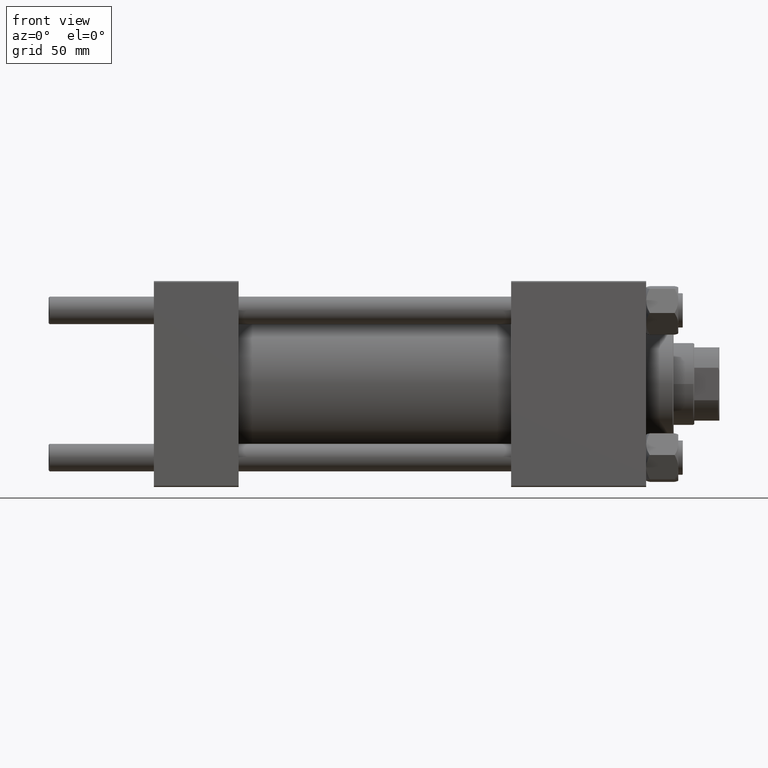
[diagram: clean part render]
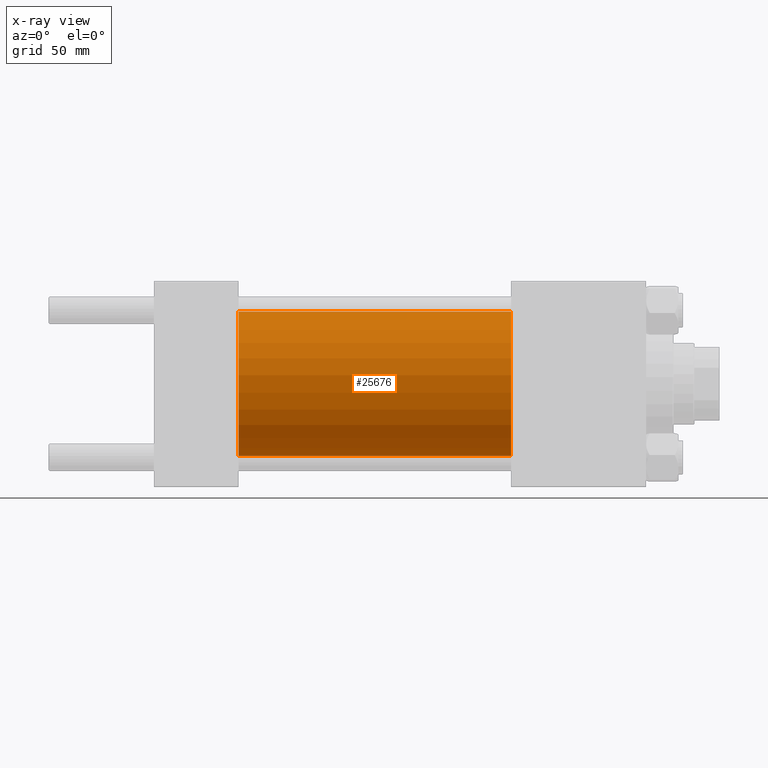
[diagram: x-ray — body ghosted, one internal face saturated and labeled with its STEP entity id]
A machine part, front view, then the same camera in x-ray: the body is ghosted and one INTERNAL B-rep face — a face not visible from any outside direction — is saturated and labeled: STEP entity #25676.
In plain terms, the highlighted cylindrical surface (partial cylindrical patch) has radius 31.5 mm, axis along (-1, -0, -0).
Its self-contained STEP definition (entity closure, byte-faithful):
#1200 = AXIS2_PLACEMENT_3D ( 'NONE', #28574, #44210, #20745 ) ;
#2621 = DIRECTION ( 'NONE',  ( -1.000000000000000000, -0.000000000000000000, -0.000000000000000000 ) ) ;
#8033 = CARTESIAN_POINT ( 'NONE',  ( 156.0000000000000000, 0.000000000000000000, 31.50000000000000000 ) ) ;
#8876 = ORIENTED_EDGE ( 'NONE', *, *, #26259, .T. ) ;
#10731 = FACE_OUTER_BOUND ( 'NONE', #33809, .T. ) ;
#12243 = CARTESIAN_POINT ( 'NONE',  ( 37.00000000000000000, 0.000000000000000000, 31.50000000000000000 ) ) ;
#14118 = CARTESIAN_POINT ( 'NONE',  ( 156.0000000000000000, 3.857637417314162689E-15, -31.50000000000000000 ) ) ;
#14277 = CARTESIAN_POINT ( 'NONE',  ( 156.0000000000000000, 3.857637417314162689E-15, -31.50000000000000000 ) ) ;
#18258 = CARTESIAN_POINT ( 'NONE',  ( 156.0000000000000000, 0.000000000000000000, 31.50000000000000000 ) ) ;
#18670 = CARTESIAN_POINT ( 'NONE',  ( 37.00000000000000000, 0.000000000000000000, 0.000000000000000000 ) ) ;
#19167 = DIRECTION ( 'NONE',  ( 1.000000000000000000, 0.000000000000000000, 0.000000000000000000 ) ) ;
#19677 = DIRECTION ( 'NONE',  ( 0.000000000000000000, 0.000000000000000000, -1.000000000000000000 ) ) ;
#20745 = DIRECTION ( 'NONE',  ( 0.000000000000000000, 0.000000000000000000, -1.000000000000000000 ) ) ;
#21884 = EDGE_CURVE ( 'NONE', #29522, #39090, #48581, .T. ) ;
#25009 = DIRECTION ( 'NONE',  ( -1.000000000000000000, -0.000000000000000000, -0.000000000000000000 ) ) ;
#25417 = DIRECTION ( 'NONE',  ( -1.000000000000000000, -0.000000000000000000, -0.000000000000000000 ) ) ;
#25676 = ADVANCED_FACE ( 'NONE', ( #10731 ), #48124, .F. ) ;
#26259 = EDGE_CURVE ( 'NONE', #33744, #38907, #28792, .T. ) ;
#27648 = VECTOR ( 'NONE', #25009, 1000.000000000000000 ) ;
#28574 = CARTESIAN_POINT ( 'NONE',  ( 156.0000000000000000, 0.000000000000000000, 0.000000000000000000 ) ) ;
#28792 = LINE ( 'NONE', #14118, #27648 ) ;
#29522 = VERTEX_POINT ( 'NONE', #8033 ) ;
#30078 = ORIENTED_EDGE ( 'NONE', *, *, #31643, .F. ) ;
#30189 = CIRCLE ( 'NONE', #38263, 31.50000000000000000 ) ;
#31643 = EDGE_CURVE ( 'NONE', #39090, #38907, #30189, .T. ) ;
#32307 = EDGE_CURVE ( 'NONE', #29522, #33744, #41503, .T. ) ;
#33744 = VERTEX_POINT ( 'NONE', #14277 ) ;
#33809 = EDGE_LOOP ( 'NONE', ( #46518, #8876, #30078, #40599 ) ) ;
#38263 = AXIS2_PLACEMENT_3D ( 'NONE', #18670, #19167, #19677 ) ;
#38907 = VERTEX_POINT ( 'NONE', #46628 ) ;
#39090 = VERTEX_POINT ( 'NONE', #12243 ) ;
#40313 = DIRECTION ( 'NONE',  ( 0.000000000000000000, 0.000000000000000000, 1.000000000000000000 ) ) ;
#40599 = ORIENTED_EDGE ( 'NONE', *, *, #21884, .F. ) ;
#40810 = CARTESIAN_POINT ( 'NONE',  ( 156.0000000000000000, 0.000000000000000000, 0.000000000000000000 ) ) ;
#41503 = CIRCLE ( 'NONE', #1200, 31.50000000000000000 ) ;
#42877 = VECTOR ( 'NONE', #2621, 1000.000000000000000 ) ;
#44210 = DIRECTION ( 'NONE',  ( 1.000000000000000000, 0.000000000000000000, 0.000000000000000000 ) ) ;
#44500 = AXIS2_PLACEMENT_3D ( 'NONE', #40810, #25417, #40313 ) ;
#46518 = ORIENTED_EDGE ( 'NONE', *, *, #32307, .T. ) ;
#46628 = CARTESIAN_POINT ( 'NONE',  ( 37.00000000000000000, 3.857637417314162689E-15, -31.50000000000000000 ) ) ;
#48124 = CYLINDRICAL_SURFACE ( 'NONE', #44500, 31.50000000000000000 ) ;
#48581 = LINE ( 'NONE', #18258, #42877 ) ;